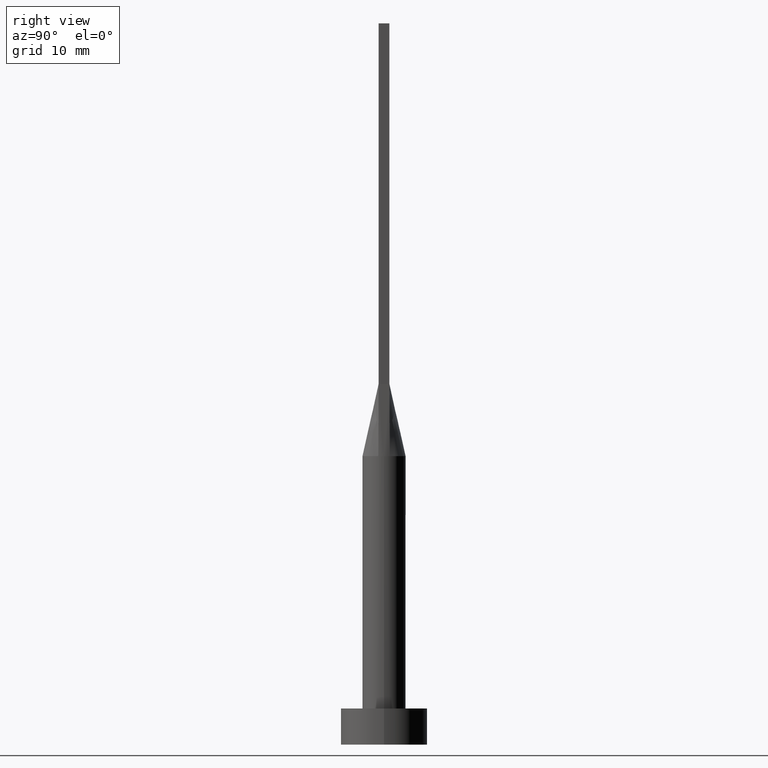
[diagram: clean part render]
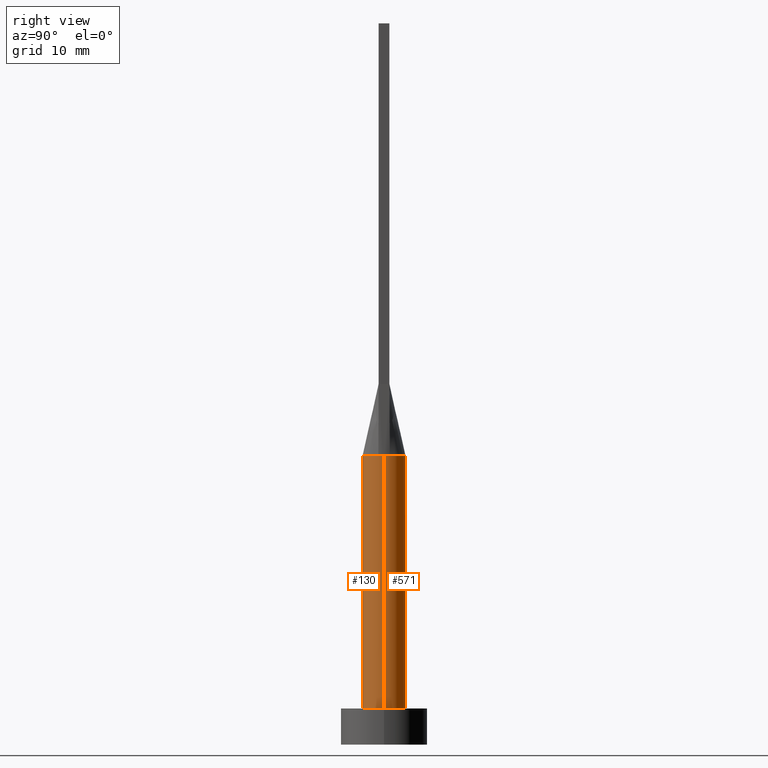
[diagram: same view with one multi-face feature highlighted, each face labeled with its STEP entity id]
A machine part, right view. The highlighted faces form ONE feature: a constant-radius fillet chain: 2 tangent blend faces with common blend radius 3 mm. The faces share edges in the B-rep.
Their STEP definitions:
[1] entity #130 (Cylinder):
#8 = VERTEX_POINT ( 'NONE', #97 ) ;
#9 = CARTESIAN_POINT ( 'NONE',  ( -2.894489875237701959, -0.7894071376467488577, 40.00000000000000000 ) ) ;
#14 = DIRECTION ( 'NONE',  ( 0.000000000000000000, 0.000000000000000000, 1.000000000000000000 ) ) ;
#18 = VERTEX_POINT ( 'NONE', #280 ) ;
#25 = DIRECTION ( 'NONE',  ( 0.000000000000000000, 0.000000000000000000, 1.000000000000000000 ) ) ;
#26 = ORIENTED_EDGE ( 'NONE', *, *, #487, .F. ) ;
#31 = EDGE_CURVE ( 'NONE', #8, #230, #326, .T. ) ;
#32 = VERTEX_POINT ( 'NONE', #9 ) ;
#38 = ORIENTED_EDGE ( 'NONE', *, *, #277, .F. ) ;
#47 = CYLINDRICAL_SURFACE ( 'NONE', #365, 3.000000000000000444 ) ;
#62 = ORIENTED_EDGE ( 'NONE', *, *, #425, .T. ) ;
#72 = DIRECTION ( 'NONE',  ( 0.000000000000000000, 0.000000000000000000, 1.000000000000000000 ) ) ;
#79 = VERTEX_POINT ( 'NONE', #107 ) ;
#81 = AXIS2_PLACEMENT_3D ( 'NONE', #542, #14, #461 ) ;
#97 = CARTESIAN_POINT ( 'NONE',  ( 3.000000000000000888, 4.817174831141495148E-17, 39.99999999999999289 ) ) ;
#107 = CARTESIAN_POINT ( 'NONE',  ( -3.000000000000000444, 0.000000000000000000, 5.000000000000000000 ) ) ;
#111 = CARTESIAN_POINT ( 'NONE',  ( 0.000000000000000000, 0.000000000000000000, 5.000000000000000000 ) ) ;
#130 = ADVANCED_FACE ( 'NONE', ( #392 ), #47, .T. ) ;
#141 = CARTESIAN_POINT ( 'NONE',  ( 2.894514141151844910, -0.7894138151126538494, 40.00000000000000000 ) ) ;
#177 = EDGE_LOOP ( 'NONE', ( #565, #373, #26, #38, #62, #213 ) ) ;
#178 = CIRCLE ( 'NONE', #81, 3.000000000000000444 ) ;
#196 = DIRECTION ( 'NONE',  ( 1.000000000000000000, -5.329070518200751394E-15, 0.000000000000000000 ) ) ;
#212 = CIRCLE ( 'NONE', #539, 3.000000000000000444 ) ;
#213 = ORIENTED_EDGE ( 'NONE', *, *, #564, .T. ) ;
#221 = DIRECTION ( 'NONE',  ( 1.000000000000000000, 0.000000000000000000, 0.000000000000000000 ) ) ;
#230 = VERTEX_POINT ( 'NONE', #479 ) ;
#243 = LINE ( 'NONE', #283, #304 ) ;
#252 = AXIS2_PLACEMENT_3D ( 'NONE', #111, #25, #335 ) ;
#257 = DIRECTION ( 'NONE',  ( -0.000000000000000000, -0.000000000000000000, -1.000000000000000000 ) ) ;
#260 = CARTESIAN_POINT ( 'NONE',  ( 0.000000000000000000, 0.000000000000000000, 40.00000000000000000 ) ) ;
#277 = EDGE_CURVE ( 'NONE', #18, #32, #212, .T. ) ;
#280 = CARTESIAN_POINT ( 'NONE',  ( -3.000000000000000000, -1.912111867153115409E-16, 39.99999999999999289 ) ) ;
#283 = CARTESIAN_POINT ( 'NONE',  ( -3.000000000000000444, 0.000000000000000000, 40.00000000000000000 ) ) ;
#288 = DIRECTION ( 'NONE',  ( -0.000000000000000000, -0.000000000000000000, -1.000000000000000000 ) ) ;
#304 = VECTOR ( 'NONE', #288, 1000.000000000000000 ) ;
#326 = LINE ( 'NONE', #500, #516 ) ;
#327 = DIRECTION ( 'NONE',  ( 0.000000000000000000, 0.000000000000000000, 1.000000000000000000 ) ) ;
#328 = CIRCLE ( 'NONE', #252, 3.000000000000000444 ) ;
#335 = DIRECTION ( 'NONE',  ( 1.000000000000000000, 0.000000000000000000, 0.000000000000000000 ) ) ;
#365 = AXIS2_PLACEMENT_3D ( 'NONE', #260, #257, #563 ) ;
#371 = VERTEX_POINT ( 'NONE', #141 ) ;
#373 = ORIENTED_EDGE ( 'NONE', *, *, #494, .F. ) ;
#392 = FACE_OUTER_BOUND ( 'NONE', #177, .T. ) ;
#411 = AXIS2_PLACEMENT_3D ( 'NONE', #467, #327, #196 ) ;
#425 = EDGE_CURVE ( 'NONE', #18, #79, #243, .T. ) ;
#444 = CARTESIAN_POINT ( 'NONE',  ( 0.000000000000000000, 0.000000000000000000, 40.00000000000000000 ) ) ;
#461 = DIRECTION ( 'NONE',  ( 1.000000000000000000, 0.000000000000000000, 0.000000000000000000 ) ) ;
#463 = DIRECTION ( 'NONE',  ( -0.000000000000000000, -0.000000000000000000, -1.000000000000000000 ) ) ;
#467 = CARTESIAN_POINT ( 'NONE',  ( 0.000000000000000000, 0.000000000000000000, 40.00000000000000000 ) ) ;
#479 = CARTESIAN_POINT ( 'NONE',  ( 3.000000000000000444, 3.673940397442060361E-16, 5.000000000000000000 ) ) ;
#487 = EDGE_CURVE ( 'NONE', #32, #371, #178, .T. ) ;
#493 = CIRCLE ( 'NONE', #411, 3.000000000000000444 ) ;
#494 = EDGE_CURVE ( 'NONE', #371, #8, #493, .T. ) ;
#500 = CARTESIAN_POINT ( 'NONE',  ( 3.000000000000000444, 3.673940397442060361E-16, 40.00000000000000000 ) ) ;
#516 = VECTOR ( 'NONE', #463, 1000.000000000000000 ) ;
#539 = AXIS2_PLACEMENT_3D ( 'NONE', #444, #72, #221 ) ;
#542 = CARTESIAN_POINT ( 'NONE',  ( 0.000000000000000000, 0.000000000000000000, 40.00000000000000000 ) ) ;
#563 = DIRECTION ( 'NONE',  ( -1.000000000000000000, 0.000000000000000000, 0.000000000000000000 ) ) ;
#564 = EDGE_CURVE ( 'NONE', #79, #230, #328, .T. ) ;
#565 = ORIENTED_EDGE ( 'NONE', *, *, #31, .F. ) ;
[2] entity #571 (Cylinder):
#3 = ORIENTED_EDGE ( 'NONE', *, *, #50, .F. ) ;
#7 = DIRECTION ( 'NONE',  ( 1.000000000000000000, 0.000000000000000000, 0.000000000000000000 ) ) ;
#8 = VERTEX_POINT ( 'NONE', #97 ) ;
#18 = VERTEX_POINT ( 'NONE', #280 ) ;
#21 = CARTESIAN_POINT ( 'NONE',  ( 0.3818979204996085230, 3.000000000000001332, 40.00000000000000000 ) ) ;
#31 = EDGE_CURVE ( 'NONE', #8, #230, #326, .T. ) ;
#36 = ORIENTED_EDGE ( 'NONE', *, *, #425, .F. ) ;
#50 = EDGE_CURVE ( 'NONE', #408, #18, #529, .T. ) ;
#73 = CARTESIAN_POINT ( 'NONE',  ( -0.3818979204996078569, 3.000000000000000888, 40.00000000000000000 ) ) ;
#79 = VERTEX_POINT ( 'NONE', #107 ) ;
#96 = DIRECTION ( 'NONE',  ( 1.000000000000000000, 0.000000000000000000, 0.000000000000000000 ) ) ;
#97 = CARTESIAN_POINT ( 'NONE',  ( 3.000000000000000888, 4.817174831141495148E-17, 39.99999999999999289 ) ) ;
#99 = AXIS2_PLACEMENT_3D ( 'NONE', #459, #370, #96 ) ;
#107 = CARTESIAN_POINT ( 'NONE',  ( -3.000000000000000444, 0.000000000000000000, 5.000000000000000000 ) ) ;
#109 = CARTESIAN_POINT ( 'NONE',  ( 0.000000000000000000, 0.000000000000000000, 40.00000000000000000 ) ) ;
#118 = CARTESIAN_POINT ( 'NONE',  ( -0.7628506052746797383, 2.924692134573155133, 40.00000000000000000 ) ) ;
#129 = CIRCLE ( 'NONE', #99, 3.000000000000000444 ) ;
#143 = DIRECTION ( 'NONE',  ( 0.000000000000000000, 0.000000000000000000, 1.000000000000000000 ) ) ;
#146 = CARTESIAN_POINT ( 'NONE',  ( -2.894506632021299541, 0.7894116946786272626, 40.00000000000000000 ) ) ;
#154 = CARTESIAN_POINT ( 'NONE',  ( 2.894482401701604424, 0.7894050286368272662, 40.00000000000000000 ) ) ;
#160 = CARTESIAN_POINT ( 'NONE',  ( -1.447928580458858416, 2.653161878569119558, 40.00000000000000000 ) ) ;
#165 = CARTESIAN_POINT ( 'NONE',  ( 2.442412046818595250, 1.765588549521970529, 40.00000000000000711 ) ) ;
#194 = AXIS2_PLACEMENT_3D ( 'NONE', #506, #143, #7 ) ;
#198 = CYLINDRICAL_SURFACE ( 'NONE', #443, 3.000000000000000444 ) ;
#204 = CARTESIAN_POINT ( 'NONE',  ( 1.447928580458859305, 2.653161878569118670, 40.00000000000000000 ) ) ;
#206 = CARTESIAN_POINT ( 'NONE',  ( -1.751288851749021491, 2.458468820606022565, 39.99999999999999289 ) ) ;
#210 = CARTESIAN_POINT ( 'NONE',  ( 2.733316749964668446, 1.269511353635831341, 40.00000000000002132 ) ) ;
#216 = ORIENTED_EDGE ( 'NONE', *, *, #580, .F. ) ;
#230 = VERTEX_POINT ( 'NONE', #479 ) ;
#240 = EDGE_LOOP ( 'NONE', ( #287, #526, #378, #36, #3, #216 ) ) ;
#243 = LINE ( 'NONE', #283, #304 ) ;
#248 = CARTESIAN_POINT ( 'NONE',  ( 2.830829925251657997, 1.022044525068634302, 39.99999999999999289 ) ) ;
#263 = B_SPLINE_CURVE_WITH_KNOTS ( 'NONE', 3,
 ( #509, #248, #210, #165, #391, #477, #204, #299, #21, #73, #118, #160, #206, #432, #294, #307, #388, #473 ),
 .UNSPECIFIED., .F., .F.,
 ( 4, 2, 2, 2, 2, 2, 2, 2, 4 ),
 ( 0.000000000000000000, 0.1250000000000000000, 0.2500000000000000000, 0.3750000000000000000, 0.5000000000000000000, 0.6250000000000000000, 0.7500000000000000000, 0.8750000000000000000, 1.000000000000000000 ),
 .UNSPECIFIED. ) ;
#280 = CARTESIAN_POINT ( 'NONE',  ( -3.000000000000000000, -1.912111867153115409E-16, 39.99999999999999289 ) ) ;
#283 = CARTESIAN_POINT ( 'NONE',  ( -3.000000000000000444, 0.000000000000000000, 40.00000000000000000 ) ) ;
#287 = ORIENTED_EDGE ( 'NONE', *, *, #481, .F. ) ;
#288 = DIRECTION ( 'NONE',  ( -0.000000000000000000, -0.000000000000000000, -1.000000000000000000 ) ) ;
#294 = CARTESIAN_POINT ( 'NONE',  ( -2.442412046818596139, 1.765588549521969641, 40.00000000000001421 ) ) ;
#299 = CARTESIAN_POINT ( 'NONE',  ( 0.7628506052746800714, 2.924692134573154689, 40.00000000000000000 ) ) ;
#304 = VECTOR ( 'NONE', #288, 1000.000000000000000 ) ;
#307 = CARTESIAN_POINT ( 'NONE',  ( -2.733316749964668002, 1.269511353635830453, 40.00000000000001421 ) ) ;
#321 = CARTESIAN_POINT ( 'NONE',  ( 0.000000000000000000, 0.000000000000000000, 40.00000000000000000 ) ) ;
#326 = LINE ( 'NONE', #500, #516 ) ;
#337 = FACE_OUTER_BOUND ( 'NONE', #240, .T. ) ;
#358 = AXIS2_PLACEMENT_3D ( 'NONE', #321, #457, #466 ) ;
#368 = EDGE_CURVE ( 'NONE', #230, #79, #576, .T. ) ;
#370 = DIRECTION ( 'NONE',  ( 0.000000000000000000, 0.000000000000000000, 1.000000000000000000 ) ) ;
#378 = ORIENTED_EDGE ( 'NONE', *, *, #368, .T. ) ;
#388 = CARTESIAN_POINT ( 'NONE',  ( -2.830829925251659329, 1.022044525068634302, 39.99999999999999289 ) ) ;
#391 = CARTESIAN_POINT ( 'NONE',  ( 2.248179627679386172, 2.014142483996539834, 39.99999999999999289 ) ) ;
#408 = VERTEX_POINT ( 'NONE', #146 ) ;
#425 = EDGE_CURVE ( 'NONE', #18, #79, #243, .T. ) ;
#432 = CARTESIAN_POINT ( 'NONE',  ( -2.248179627679385728, 2.014142483996540278, 39.99999999999998579 ) ) ;
#443 = AXIS2_PLACEMENT_3D ( 'NONE', #109, #522, #518 ) ;
#457 = DIRECTION ( 'NONE',  ( 0.000000000000000000, 0.000000000000000000, 1.000000000000000000 ) ) ;
#459 = CARTESIAN_POINT ( 'NONE',  ( 0.000000000000000000, 0.000000000000000000, 40.00000000000000000 ) ) ;
#463 = DIRECTION ( 'NONE',  ( -0.000000000000000000, -0.000000000000000000, -1.000000000000000000 ) ) ;
#466 = DIRECTION ( 'NONE',  ( 1.000000000000000000, 0.000000000000000000, 0.000000000000000000 ) ) ;
#473 = CARTESIAN_POINT ( 'NONE',  ( -2.894506632021299541, 0.7894116946786272626, 40.00000000000000000 ) ) ;
#477 = CARTESIAN_POINT ( 'NONE',  ( 1.751288851749022379, 2.458468820606022565, 39.99999999999998579 ) ) ;
#479 = CARTESIAN_POINT ( 'NONE',  ( 3.000000000000000444, 3.673940397442060361E-16, 5.000000000000000000 ) ) ;
#481 = EDGE_CURVE ( 'NONE', #8, #562, #129, .T. ) ;
#500 = CARTESIAN_POINT ( 'NONE',  ( 3.000000000000000444, 3.673940397442060361E-16, 40.00000000000000000 ) ) ;
#506 = CARTESIAN_POINT ( 'NONE',  ( 0.000000000000000000, 0.000000000000000000, 5.000000000000000000 ) ) ;
#509 = CARTESIAN_POINT ( 'NONE',  ( 2.894482401701604424, 0.7894050286368272662, 40.00000000000000000 ) ) ;
#516 = VECTOR ( 'NONE', #463, 1000.000000000000000 ) ;
#518 = DIRECTION ( 'NONE',  ( -1.000000000000000000, 0.000000000000000000, 0.000000000000000000 ) ) ;
#522 = DIRECTION ( 'NONE',  ( -0.000000000000000000, -0.000000000000000000, -1.000000000000000000 ) ) ;
#526 = ORIENTED_EDGE ( 'NONE', *, *, #31, .T. ) ;
#529 = CIRCLE ( 'NONE', #358, 3.000000000000000444 ) ;
#562 = VERTEX_POINT ( 'NONE', #154 ) ;
#571 = ADVANCED_FACE ( 'NONE', ( #337 ), #198, .T. ) ;
#576 = CIRCLE ( 'NONE', #194, 3.000000000000000444 ) ;
#580 = EDGE_CURVE ( 'NONE', #562, #408, #263, .T. ) ;